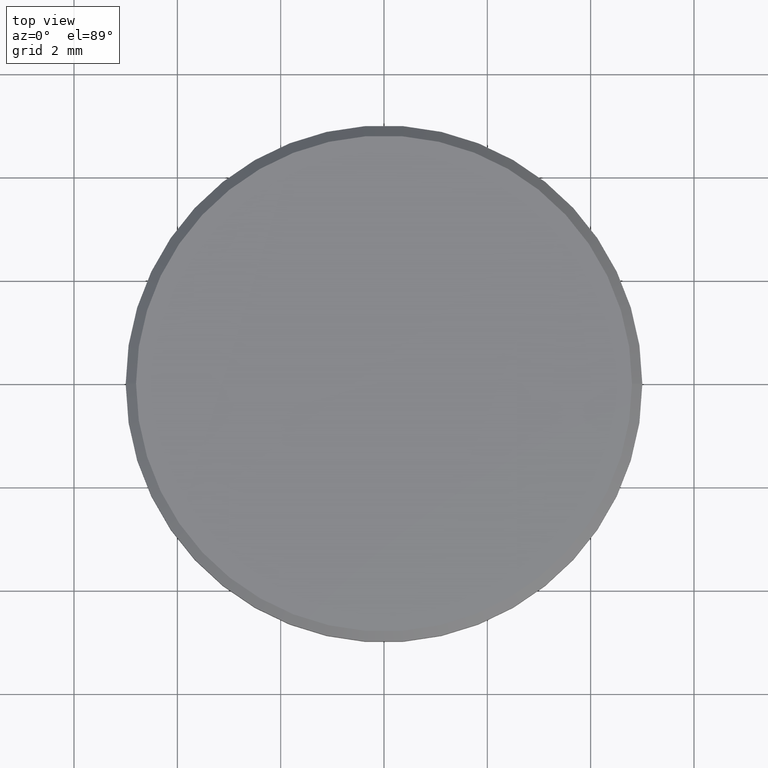
[diagram: clean part render]
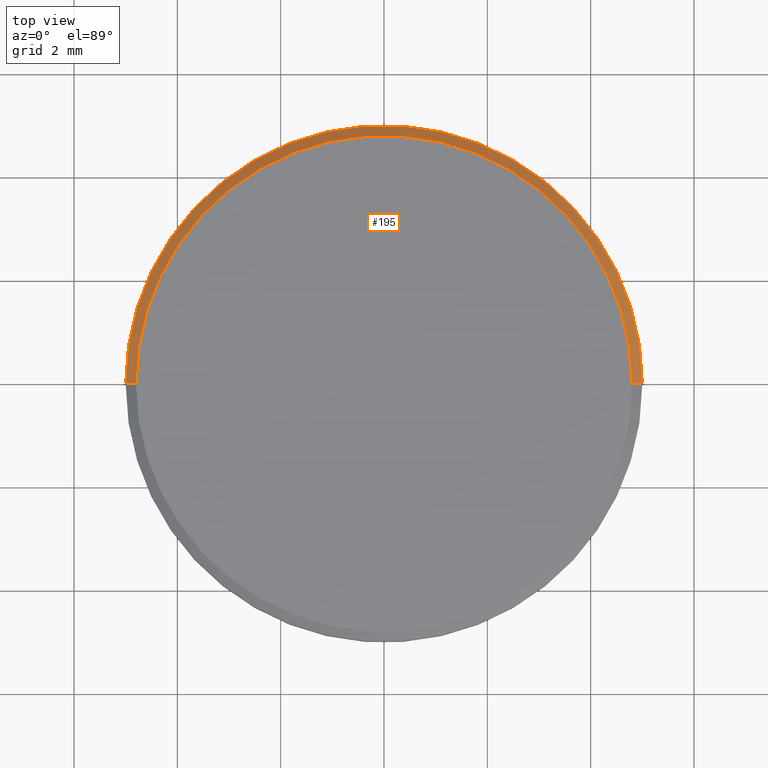
[diagram: same view with one face highlighted and labeled with its STEP entity id]
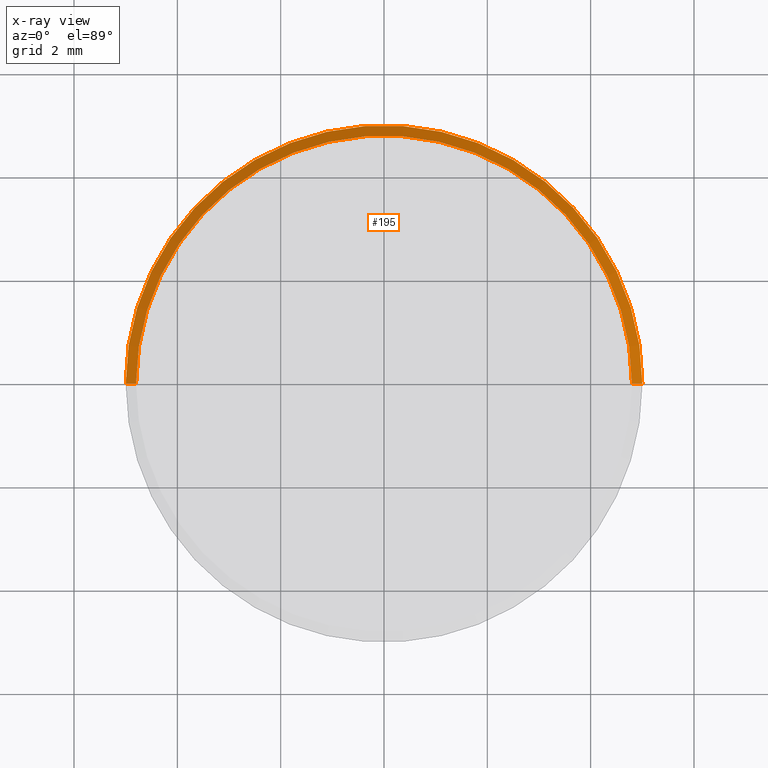
[diagram: x-ray of the same camera — body ghosted, the highlighted face saturated]
A machine part, top view. The second image highlights one B-rep face of the part: STEP entity #195.
The next image is the same camera in x-ray: the body ghosted, the highlighted face saturated — about 0% of this face is hidden behind the body in this view.
In plain terms, the highlighted conical surface has half-angle 45 deg.
Its self-contained STEP definition (entity closure, byte-faithful):
#3 = EDGE_LOOP ( 'NONE', ( #44, #53, #63, #75 ) ) ;
#4 = EDGE_CURVE ( 'NONE', #194, #79, #20, .T. ) ;
#8 = CARTESIAN_POINT ( 'NONE',  ( 0.000000000000000000, 0.000000000000000000, 1.000000000000000000 ) ) ;
#11 = DIRECTION ( 'NONE',  ( 1.000000000000000000, 0.000000000000000000, 0.000000000000000000 ) ) ;
#12 = EDGE_CURVE ( 'NONE', #155, #194, #175, .T. ) ;
#20 = CIRCLE ( 'NONE', #147, 5.000000000000000000 ) ;
#24 = CARTESIAN_POINT ( 'NONE',  ( 0.000000000000000000, 0.000000000000000000, 0.8000000000000012657 ) ) ;
#33 = CARTESIAN_POINT ( 'NONE',  ( 4.800000000000002487, 5.878304635907297169E-16, 1.000000000000000000 ) ) ;
#44 = ORIENTED_EDGE ( 'NONE', *, *, #120, .F. ) ;
#47 = AXIS2_PLACEMENT_3D ( 'NONE', #162, #185, #146 ) ;
#53 = ORIENTED_EDGE ( 'NONE', *, *, #145, .T. ) ;
#63 = ORIENTED_EDGE ( 'NONE', *, *, #4, .F. ) ;
#64 = DIRECTION ( 'NONE',  ( -0.7071067811865460184, 0.000000000000000000, -0.7071067811865489050 ) ) ;
#65 = CARTESIAN_POINT ( 'NONE',  ( -4.800000000000002487, 0.000000000000000000, 1.000000000000000000 ) ) ;
#75 = ORIENTED_EDGE ( 'NONE', *, *, #12, .F. ) ;
#77 = VECTOR ( 'NONE', #215, 1000.000000000000114 ) ;
#79 = VERTEX_POINT ( 'NONE', #85 ) ;
#85 = CARTESIAN_POINT ( 'NONE',  ( 5.000000000000000000, 6.123233995736766282E-16, 0.8000000000000012657 ) ) ;
#98 = DIRECTION ( 'NONE',  ( 0.000000000000000000, 0.000000000000000000, -1.000000000000000000 ) ) ;
#110 = VERTEX_POINT ( 'NONE', #141 ) ;
#120 = EDGE_CURVE ( 'NONE', #110, #155, #203, .T. ) ;
#121 = LINE ( 'NONE', #33, #77 ) ;
#141 = CARTESIAN_POINT ( 'NONE',  ( 4.800000000000002487, 6.000769315822031726E-16, 1.000000000000000000 ) ) ;
#145 = EDGE_CURVE ( 'NONE', #110, #79, #121, .T. ) ;
#146 = DIRECTION ( 'NONE',  ( -1.000000000000000000, 0.000000000000000000, 0.000000000000000000 ) ) ;
#147 = AXIS2_PLACEMENT_3D ( 'NONE', #24, #98, #172 ) ;
#155 = VERTEX_POINT ( 'NONE', #65 ) ;
#160 = DIRECTION ( 'NONE',  ( 0.000000000000000000, 0.000000000000000000, 1.000000000000000000 ) ) ;
#162 = CARTESIAN_POINT ( 'NONE',  ( 0.000000000000000000, 0.000000000000000000, 1.000000000000000000 ) ) ;
#172 = DIRECTION ( 'NONE',  ( 1.000000000000000000, 0.000000000000000000, 0.000000000000000000 ) ) ;
#175 = LINE ( 'NONE', #232, #219 ) ;
#176 = CONICAL_SURFACE ( 'NONE', #47, 4.800000000000002487, 0.7853981633974461696 ) ;
#185 = DIRECTION ( 'NONE',  ( 0.000000000000000000, 0.000000000000000000, -1.000000000000000000 ) ) ;
#194 = VERTEX_POINT ( 'NONE', #198 ) ;
#195 = ADVANCED_FACE ( 'NONE', ( #214 ), #176, .T. ) ;
#198 = CARTESIAN_POINT ( 'NONE',  ( -5.000000000000000000, 0.000000000000000000, 0.8000000000000012657 ) ) ;
#203 = CIRCLE ( 'NONE', #211, 4.800000000000002487 ) ;
#211 = AXIS2_PLACEMENT_3D ( 'NONE', #8, #160, #11 ) ;
#214 = FACE_OUTER_BOUND ( 'NONE', #3, .T. ) ;
#215 = DIRECTION ( 'NONE',  ( 0.7071067811865460184, 8.659560562354913137E-17, -0.7071067811865489050 ) ) ;
#219 = VECTOR ( 'NONE', #64, 1000.000000000000114 ) ;
#232 = CARTESIAN_POINT ( 'NONE',  ( -4.800000000000002487, 0.000000000000000000, 1.000000000000000000 ) ) ;